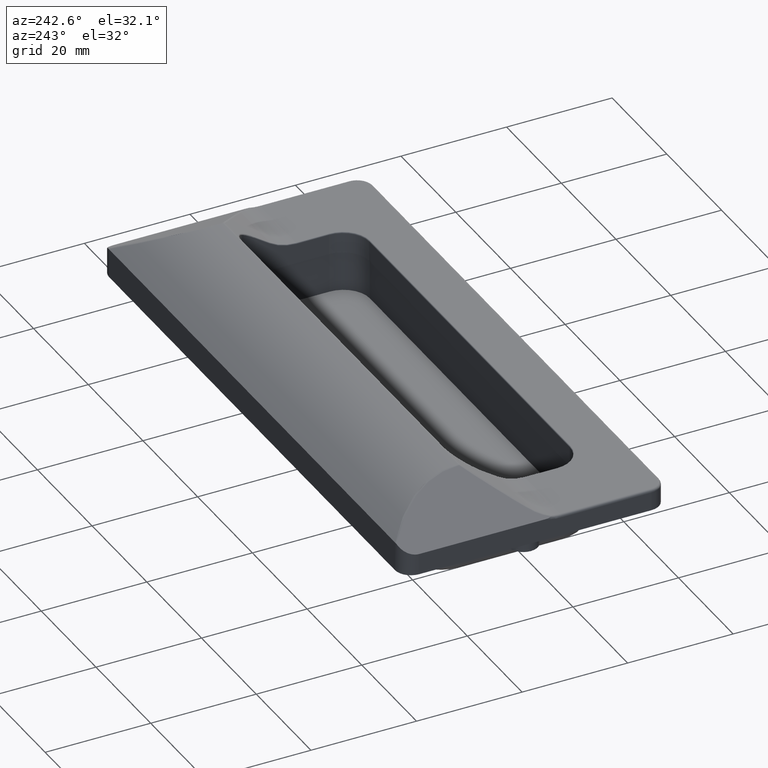
[diagram: clean part render]
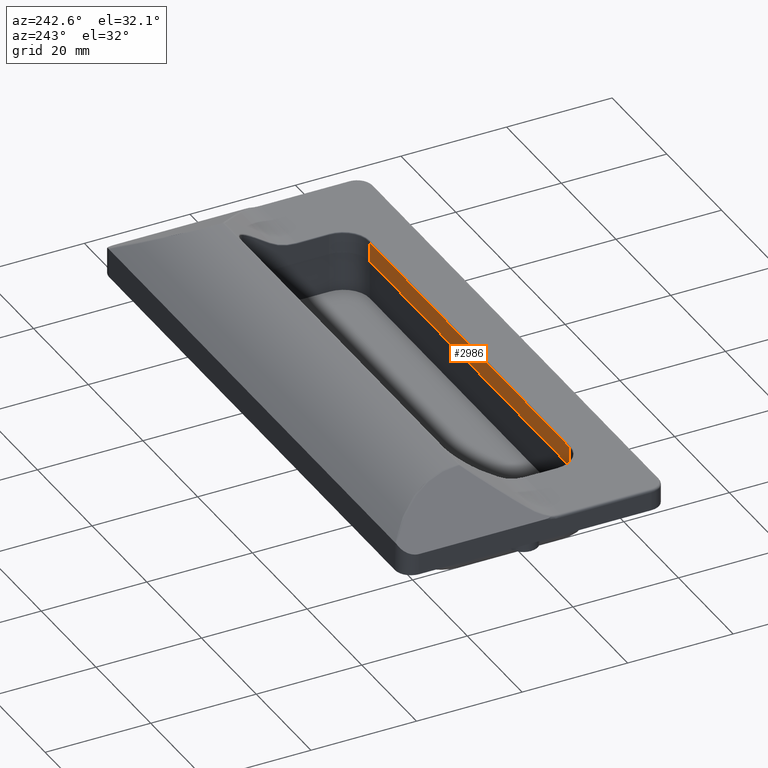
[diagram: same view with one face highlighted and labeled with its STEP entity id]
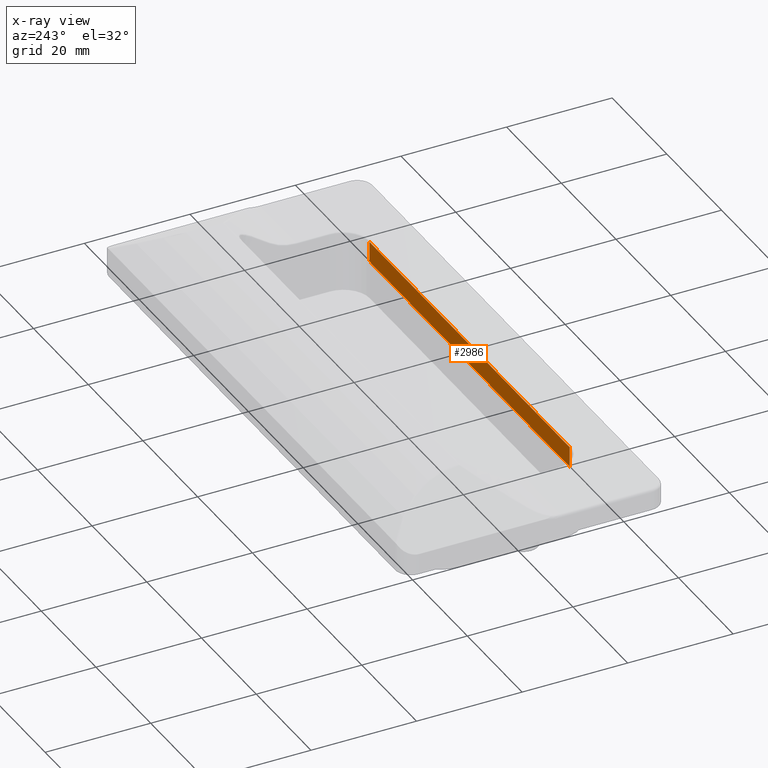
[diagram: x-ray of the same camera — body ghosted, the highlighted face saturated]
A machine part, auxiliary view. The second image highlights one B-rep face of the part: STEP entity #2986.
The next image is the same camera in x-ray: the body ghosted, the highlighted face saturated — about 0% of this face is hidden behind the body in this view.
In plain terms, the highlighted planar face has unit normal (0, -1, 0).
Its self-contained STEP definition (entity closure, byte-faithful):
#71=PLANE('',#3250);
#148=LINE('',#4492,#386);
#210=LINE('',#4991,#448);
#225=LINE('',#5080,#463);
#226=LINE('',#5082,#464);
#386=VECTOR('',#3499,73.3);
#448=VECTOR('',#3769,73.3);
#463=VECTOR('',#3840,3.8);
#464=VECTOR('',#3843,3.8);
#778=FACE_OUTER_BOUND('',#962,.T.);
#962=EDGE_LOOP('',(#2334,#2335,#2336,#2337));
#1279=VERTEX_POINT('',#4482);
#1281=VERTEX_POINT('',#4488);
#1382=VERTEX_POINT('',#4988);
#1383=VERTEX_POINT('',#4990);
#1575=EDGE_CURVE('',#1279,#1281,#148,.T.);
#1716=EDGE_CURVE('',#1382,#1383,#210,.T.);
#1749=EDGE_CURVE('',#1382,#1281,#225,.T.);
#1750=EDGE_CURVE('',#1383,#1279,#226,.T.);
#2334=ORIENTED_EDGE('',*,*,#1575,.F.);
#2335=ORIENTED_EDGE('',*,*,#1750,.F.);
#2336=ORIENTED_EDGE('',*,*,#1716,.F.);
#2337=ORIENTED_EDGE('',*,*,#1749,.T.);
#2986=ADVANCED_FACE('',(#778),#71,.F.);
#3250=AXIS2_PLACEMENT_3D('',#5081,#3841,#3842);
#3499=DIRECTION('',(-1.,-1.21170316466593E-16,0.));
#3769=DIRECTION('',(1.,1.21170316466593E-16,8.47624092048004E-50));
#3840=DIRECTION('',(0.,0.,1.));
#3841=DIRECTION('center_axis',(1.21170316466593E-16,-1.,0.));
#3842=DIRECTION('ref_axis',(1.,1.77635683940025E-16,0.));
#3843=DIRECTION('',(0.,0.,1.));
#4482=CARTESIAN_POINT('',(36.65,8.80000000000001,-0.2));
#4488=CARTESIAN_POINT('',(-36.65,8.8,-0.2));
#4492=CARTESIAN_POINT('',(-18.325,8.8,-0.2));
#4988=CARTESIAN_POINT('',(-36.65,8.8,-4.));
#4990=CARTESIAN_POINT('',(36.65,8.80000000000001,-4.));
#4991=CARTESIAN_POINT('',(-18.325,8.8,-4.));
#5080=CARTESIAN_POINT('',(-36.65,8.8,-4.));
#5081=CARTESIAN_POINT('Origin',(-36.65,8.8,-4.));
#5082=CARTESIAN_POINT('',(36.65,8.80000000000001,-4.));